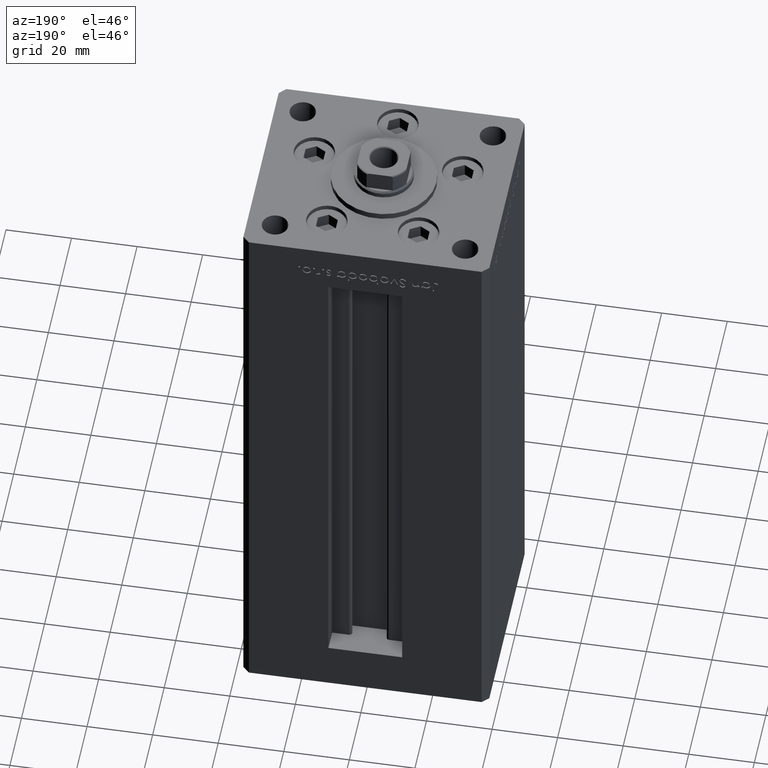
[diagram: clean part render]
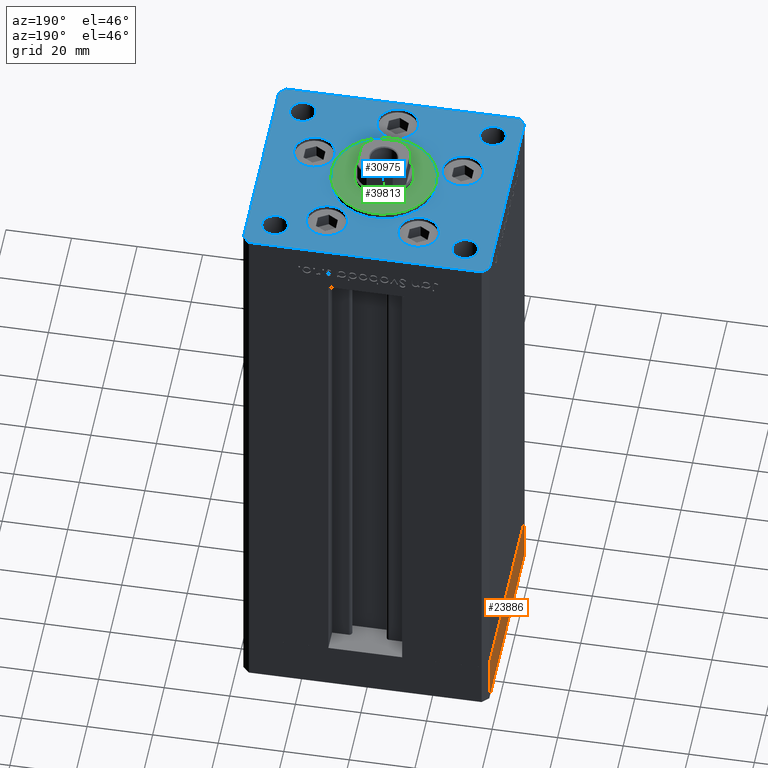
[diagram: same view with three faces highlighted in distinct colors, each labeled with its STEP entity id]
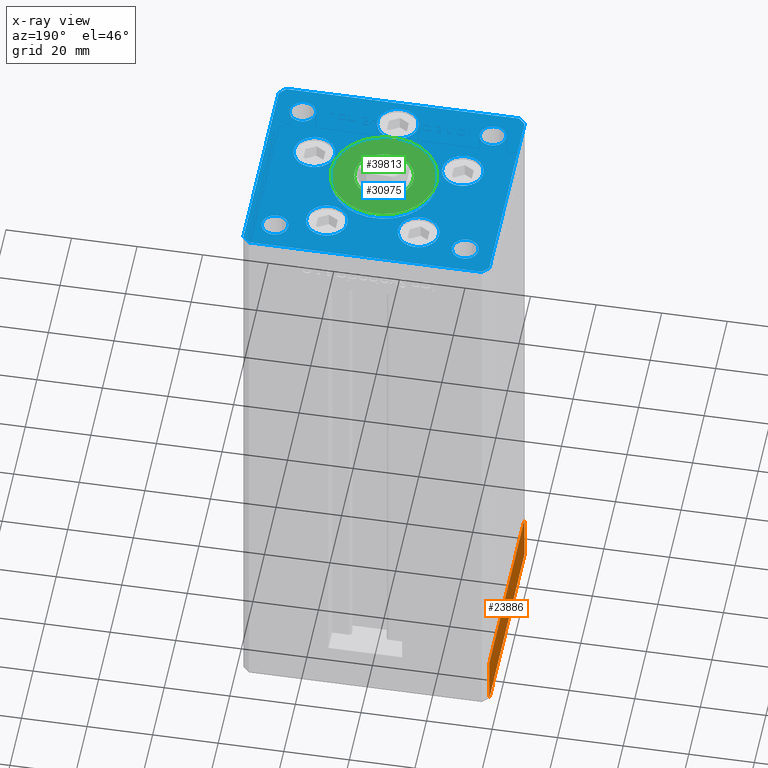
[diagram: x-ray of the same camera — body ghosted, the three highlighted faces saturated]
A machine part, auxiliary view with three faces highlighted in distinct colors.
The next image is the same camera in x-ray (body ghosted, the three faces saturated) — at least one of them is partly hidden behind the body in this view.
Their STEP definitions:

[orange] entity #23886 — the highlighted planar face has unit normal (-1, 0, 0).
#3439 = VECTOR ( 'NONE', #39386, 1000.000000000000000 ) ;
#3461 = CARTESIAN_POINT ( 'NONE',  ( 37.50000000000001421, -30.50000000000000711, 0.000000000000000000 ) ) ;
#4001 = DIRECTION ( 'NONE',  ( -1.478780668045802821E-15, 1.000000000000000000, 0.000000000000000000 ) ) ;
#4687 = ORIENTED_EDGE ( 'NONE', *, *, #30569, .F. ) ;
#6138 = VERTEX_POINT ( 'NONE', #17794 ) ;
#6456 = DIRECTION ( 'NONE',  ( 0.000000000000000000, 0.000000000000000000, 1.000000000000000000 ) ) ;
#11956 = CARTESIAN_POINT ( 'NONE',  ( 37.50000000000001421, -30.50000000000000711, 0.000000000000000000 ) ) ;
#12186 = LINE ( 'NONE', #3461, #48911 ) ;
#12970 = LINE ( 'NONE', #48602, #47824 ) ;
#14666 = PLANE ( 'NONE',  #25972 ) ;
#17088 = EDGE_CURVE ( 'NONE', #6138, #39335, #12970, .T. ) ;
#17794 = CARTESIAN_POINT ( 'NONE',  ( 37.50000000000001421, -30.50000000000000711, -15.00000000000000000 ) ) ;
#17875 = VECTOR ( 'NONE', #6456, 1000.000000000000000 ) ;
#18354 = DIRECTION ( 'NONE',  ( 1.000000000000000000, 1.478780668045803018E-15, -0.000000000000000000 ) ) ;
#20729 = VERTEX_POINT ( 'NONE', #11956 ) ;
#22061 = FACE_OUTER_BOUND ( 'NONE', #42623, .T. ) ;
#22573 = CARTESIAN_POINT ( 'NONE',  ( 37.50000000000001421, -30.50000000000000711, -15.00000000000000000 ) ) ;
#23886 = ADVANCED_FACE ( 'NONE', ( #22061 ), #14666, .T. ) ;
#25209 = ORIENTED_EDGE ( 'NONE', *, *, #17088, .T. ) ;
#25972 = AXIS2_PLACEMENT_3D ( 'NONE', #22573, #18354, #37925 ) ;
#26067 = ORIENTED_EDGE ( 'NONE', *, *, #51692, .T. ) ;
#26792 = LINE ( 'NONE', #34470, #17875 ) ;
#28539 = DIRECTION ( 'NONE',  ( -1.478780668045802821E-15, 1.000000000000000000, 0.000000000000000000 ) ) ;
#30569 = EDGE_CURVE ( 'NONE', #20729, #34625, #12186, .T. ) ;
#31176 = CARTESIAN_POINT ( 'NONE',  ( 37.50000000000001421, -30.50000000000000711, -15.00000000000000000 ) ) ;
#34470 = CARTESIAN_POINT ( 'NONE',  ( 37.49999999999992184, 30.50000000000001066, -15.00000000000000000 ) ) ;
#34625 = VERTEX_POINT ( 'NONE', #40521 ) ;
#35151 = LINE ( 'NONE', #31176, #3439 ) ;
#35480 = ORIENTED_EDGE ( 'NONE', *, *, #43977, .F. ) ;
#37925 = DIRECTION ( 'NONE',  ( -1.478780668045803018E-15, 1.000000000000000000, 0.000000000000000000 ) ) ;
#39335 = VERTEX_POINT ( 'NONE', #42468 ) ;
#39386 = DIRECTION ( 'NONE',  ( 0.000000000000000000, 0.000000000000000000, 1.000000000000000000 ) ) ;
#40521 = CARTESIAN_POINT ( 'NONE',  ( 37.49999999999992184, 30.50000000000001066, 0.000000000000000000 ) ) ;
#42468 = CARTESIAN_POINT ( 'NONE',  ( 37.49999999999992184, 30.50000000000001066, -15.00000000000000000 ) ) ;
#42623 = EDGE_LOOP ( 'NONE', ( #4687, #35480, #25209, #26067 ) ) ;
#43977 = EDGE_CURVE ( 'NONE', #6138, #20729, #35151, .T. ) ;
#47824 = VECTOR ( 'NONE', #4001, 1000.000000000000000 ) ;
#48602 = CARTESIAN_POINT ( 'NONE',  ( 37.50000000000001421, -30.50000000000000711, -15.00000000000000000 ) ) ;
#48911 = VECTOR ( 'NONE', #28539, 1000.000000000000000 ) ;
#51692 = EDGE_CURVE ( 'NONE', #39335, #34625, #26792, .T. ) ;

[blue] entity #30975 — the highlighted planar face has unit normal (0, 0, 1).
#56 = EDGE_CURVE ( 'NONE', #41171, #18325, #45005, .T. ) ;
#202 = VERTEX_POINT ( 'NONE', #8745 ) ;
#344 = EDGE_CURVE ( 'NONE', #26016, #4117, #28511, .T. ) ;
#396 = DIRECTION ( 'NONE',  ( -0.000000000000000000, -0.000000000000000000, -1.000000000000000000 ) ) ;
#462 = EDGE_LOOP ( 'NONE', ( #487, #12378 ) ) ;
#487 = ORIENTED_EDGE ( 'NONE', *, *, #56, .F. ) ;
#791 = CIRCLE ( 'NONE', #20074, 4.000000000000000000 ) ;
#940 = CARTESIAN_POINT ( 'NONE',  ( -35.50000000000000711, 32.49999999999997868, 0.000000000000000000 ) ) ;
#1187 = FACE_BOUND ( 'NONE', #28733, .T. ) ;
#1451 = FACE_BOUND ( 'NONE', #35359, .T. ) ;
#1930 = LINE ( 'NONE', #10891, #17668 ) ;
#2027 = CARTESIAN_POINT ( 'NONE',  ( 0.000000000000000000, -24.00000000000001066, 0.000000000000000000 ) ) ;
#2121 = VERTEX_POINT ( 'NONE', #22216 ) ;
#2246 = ORIENTED_EDGE ( 'NONE', *, *, #344, .T. ) ;
#2268 = DIRECTION ( 'NONE',  ( -1.000000000000000000, 0.000000000000000000, 0.000000000000000000 ) ) ;
#2336 = LINE ( 'NONE', #11031, #29667 ) ;
#2898 = DIRECTION ( 'NONE',  ( -0.000000000000000000, -0.000000000000000000, -1.000000000000000000 ) ) ;
#2958 = EDGE_LOOP ( 'NONE', ( #28787, #42600 ) ) ;
#3064 = DIRECTION ( 'NONE',  ( 1.000000000000000000, 0.000000000000000000, 0.000000000000000000 ) ) ;
#3811 = DIRECTION ( 'NONE',  ( 0.000000000000000000, 0.000000000000000000, 1.000000000000000000 ) ) ;
#3820 = CARTESIAN_POINT ( 'NONE',  ( -22.62741699796953299, -8.000000000000000000, 0.000000000000000000 ) ) ;
#3961 = VERTEX_POINT ( 'NONE', #50387 ) ;
#4087 = CIRCLE ( 'NONE', #35309, 16.00000000000000355 ) ;
#4117 = VERTEX_POINT ( 'NONE', #20763 ) ;
#4161 = AXIS2_PLACEMENT_3D ( 'NONE', #29740, #9666, #18614 ) ;
#4208 = EDGE_CURVE ( 'NONE', #47137, #51368, #27383, .T. ) ;
#4487 = DIRECTION ( 'NONE',  ( 1.000000000000000000, 0.000000000000000000, 0.000000000000000000 ) ) ;
#4611 = CARTESIAN_POINT ( 'NONE',  ( -29.00000000000000000, 24.00000000000000711, 0.000000000000000000 ) ) ;
#4664 = EDGE_CURVE ( 'NONE', #4117, #22891, #28851, .T. ) ;
#4948 = VERTEX_POINT ( 'NONE', #28019 ) ;
#5171 = EDGE_CURVE ( 'NONE', #49449, #42671, #27416, .T. ) ;
#5760 = EDGE_CURVE ( 'NONE', #22980, #25162, #26313, .T. ) ;
#5770 = DIRECTION ( 'NONE',  ( -0.000000000000000000, -0.000000000000000000, -1.000000000000000000 ) ) ;
#5864 = EDGE_CURVE ( 'NONE', #20955, #31782, #38409, .T. ) ;
#5936 = FACE_BOUND ( 'NONE', #7629, .T. ) ;
#6619 = DIRECTION ( 'NONE',  ( 0.000000000000000000, 1.000000000000000000, 0.000000000000000000 ) ) ;
#6738 = CARTESIAN_POINT ( 'NONE',  ( 22.62741699796953299, -8.000000000000000000, 0.000000000000000000 ) ) ;
#6980 = DIRECTION ( 'NONE',  ( 0.000000000000000000, 0.000000000000000000, 1.000000000000000000 ) ) ;
#7002 = DIRECTION ( 'NONE',  ( 0.000000000000000000, 0.000000000000000000, 1.000000000000000000 ) ) ;
#7082 = CIRCLE ( 'NONE', #13866, 6.250000000000001776 ) ;
#7161 = AXIS2_PLACEMENT_3D ( 'NONE', #2027, #7002, #26824 ) ;
#7190 = EDGE_CURVE ( 'NONE', #2121, #27115, #7082, .T. ) ;
#7629 = EDGE_LOOP ( 'NONE', ( #31191, #36967 ) ) ;
#7642 = VERTEX_POINT ( 'NONE', #35423 ) ;
#8575 = DIRECTION ( 'NONE',  ( 0.000000000000000000, 0.000000000000000000, 1.000000000000000000 ) ) ;
#8745 = CARTESIAN_POINT ( 'NONE',  ( 35.50000000000001421, -32.49999999999992184, 0.000000000000000000 ) ) ;
#8833 = CARTESIAN_POINT ( 'NONE',  ( 0.000000000000000000, -6.938893903907228378E-15, 0.000000000000000000 ) ) ;
#9666 = DIRECTION ( 'NONE',  ( 0.000000000000000000, 0.000000000000000000, 1.000000000000000000 ) ) ;
#9730 = ORIENTED_EDGE ( 'NONE', *, *, #49860, .T. ) ;
#9744 = CARTESIAN_POINT ( 'NONE',  ( -29.00000000000000000, 24.00000000000000711, 0.000000000000000000 ) ) ;
#9778 = CARTESIAN_POINT ( 'NONE',  ( 20.24106857963324302, 19.50000000000000000, 0.000000000000000000 ) ) ;
#10100 = CARTESIAN_POINT ( 'NONE',  ( -35.50000000000000711, 32.49999999999997868, 0.000000000000000000 ) ) ;
#10449 = DIRECTION ( 'NONE',  ( 1.000000000000000000, 0.000000000000000000, 0.000000000000000000 ) ) ;
#10461 = VECTOR ( 'NONE', #38473, 1000.000000000000000 ) ;
#10467 = ORIENTED_EDGE ( 'NONE', *, *, #34285, .T. ) ;
#10891 = CARTESIAN_POINT ( 'NONE',  ( -35.50000000000001421, -32.50000000000000711, 0.000000000000000000 ) ) ;
#11031 = CARTESIAN_POINT ( 'NONE',  ( 35.50000000000001421, -32.49999999999992184, 0.000000000000000000 ) ) ;
#11293 = DIRECTION ( 'NONE',  ( 0.7071067811865463515, 0.7071067811865487940, 0.000000000000000000 ) ) ;
#11776 = EDGE_LOOP ( 'NONE', ( #22180, #25093 ) ) ;
#11779 = CARTESIAN_POINT ( 'NONE',  ( 16.00000000000000355, -4.979459025271462852E-15, 0.000000000000000000 ) ) ;
#11854 = CIRCLE ( 'NONE', #42226, 4.000000000000000000 ) ;
#11941 = VECTOR ( 'NONE', #6619, 1000.000000000000000 ) ;
#12211 = DIRECTION ( 'NONE',  ( 1.000000000000000000, 0.000000000000000000, 0.000000000000000000 ) ) ;
#12378 = ORIENTED_EDGE ( 'NONE', *, *, #14288, .F. ) ;
#12507 = DIRECTION ( 'NONE',  ( 1.000000000000000000, 0.000000000000000000, 0.000000000000000000 ) ) ;
#12888 = ORIENTED_EDGE ( 'NONE', *, *, #4664, .T. ) ;
#13149 = CARTESIAN_POINT ( 'NONE',  ( -22.62741699796953299, -8.000000000000000000, 0.000000000000000000 ) ) ;
#13310 = DIRECTION ( 'NONE',  ( 1.000000000000000000, 0.000000000000000000, 0.000000000000000000 ) ) ;
#13667 = CIRCLE ( 'NONE', #43145, 4.000000000000000000 ) ;
#13866 = AXIS2_PLACEMENT_3D ( 'NONE', #34190, #15673, #16452 ) ;
#13967 = CARTESIAN_POINT ( 'NONE',  ( -32.99999999999999289, -23.99999999999999645, 0.000000000000000000 ) ) ;
#14125 = ORIENTED_EDGE ( 'NONE', *, *, #5760, .T. ) ;
#14139 = DIRECTION ( 'NONE',  ( -0.000000000000000000, 0.000000000000000000, 1.000000000000000000 ) ) ;
#14184 = ORIENTED_EDGE ( 'NONE', *, *, #28426, .T. ) ;
#14288 = EDGE_CURVE ( 'NONE', #18325, #41171, #16557, .T. ) ;
#14301 = CIRCLE ( 'NONE', #21011, 6.250000000000000000 ) ;
#14530 = EDGE_CURVE ( 'NONE', #51368, #47137, #29219, .T. ) ;
#14806 = CARTESIAN_POINT ( 'NONE',  ( -35.50000000000001421, -32.50000000000000711, 0.000000000000000000 ) ) ;
#14915 = CARTESIAN_POINT ( 'NONE',  ( -29.00000000000000000, -23.99999999999999645, 0.000000000000000000 ) ) ;
#15201 = CIRCLE ( 'NONE', #22813, 6.250000000000001776 ) ;
#15379 = CARTESIAN_POINT ( 'NONE',  ( -29.00000000000000000, -23.99999999999999645, 0.000000000000000000 ) ) ;
#15427 = EDGE_CURVE ( 'NONE', #42671, #49449, #31784, .T. ) ;
#15500 = DIRECTION ( 'NONE',  ( 0.000000000000000000, 0.000000000000000000, 1.000000000000000000 ) ) ;
#15673 = DIRECTION ( 'NONE',  ( 0.000000000000000000, 0.000000000000000000, 1.000000000000000000 ) ) ;
#15713 = DIRECTION ( 'NONE',  ( 0.000000000000000000, 0.000000000000000000, 1.000000000000000000 ) ) ;
#15917 = CARTESIAN_POINT ( 'NONE',  ( 7.741068579633241242, 19.50000000000000000, 0.000000000000000000 ) ) ;
#15990 = DIRECTION ( 'NONE',  ( -1.000000000000000000, 0.000000000000000000, 0.000000000000000000 ) ) ;
#16124 = DIRECTION ( 'NONE',  ( 0.000000000000000000, 0.000000000000000000, 1.000000000000000000 ) ) ;
#16146 = CARTESIAN_POINT ( 'NONE',  ( 33.00000000000000000, 24.00000000000000355, 0.000000000000000000 ) ) ;
#16207 = DIRECTION ( 'NONE',  ( 0.000000000000000000, 0.000000000000000000, 1.000000000000000000 ) ) ;
#16452 = DIRECTION ( 'NONE',  ( 1.000000000000000000, 0.000000000000000000, 0.000000000000000000 ) ) ;
#16454 = AXIS2_PLACEMENT_3D ( 'NONE', #19418, #27360, #3064 ) ;
#16505 = DIRECTION ( 'NONE',  ( 1.000000000000000000, 0.000000000000000000, 0.000000000000000000 ) ) ;
#16530 = CARTESIAN_POINT ( 'NONE',  ( -20.24106857963324302, 19.50000000000000000, 0.000000000000000000 ) ) ;
#16557 = CIRCLE ( 'NONE', #41854, 3.999999999999996447 ) ;
#16900 = VERTEX_POINT ( 'NONE', #46257 ) ;
#17168 = VECTOR ( 'NONE', #20554, 1000.000000000000000 ) ;
#17277 = AXIS2_PLACEMENT_3D ( 'NONE', #36650, #41375, #25009 ) ;
#17668 = VECTOR ( 'NONE', #26999, 1000.000000000000000 ) ;
#18016 = LINE ( 'NONE', #10100, #39790 ) ;
#18325 = VERTEX_POINT ( 'NONE', #13967 ) ;
#18336 = FACE_BOUND ( 'NONE', #2958, .T. ) ;
#18614 = DIRECTION ( 'NONE',  ( 1.000000000000000000, 0.000000000000000000, 0.000000000000000000 ) ) ;
#18795 = CARTESIAN_POINT ( 'NONE',  ( 25.00000000000000355, -23.99999999999999645, 0.000000000000000000 ) ) ;
#18915 = ORIENTED_EDGE ( 'NONE', *, *, #42140, .F. ) ;
#19300 = ORIENTED_EDGE ( 'NONE', *, *, #24195, .T. ) ;
#19418 = CARTESIAN_POINT ( 'NONE',  ( -13.99106857963324124, 19.50000000000000000, 0.000000000000000000 ) ) ;
#19441 = CIRCLE ( 'NONE', #49784, 16.00000000000000355 ) ;
#19731 = CARTESIAN_POINT ( 'NONE',  ( -25.00000000000000355, -23.99999999999999645, 0.000000000000000000 ) ) ;
#20074 = AXIS2_PLACEMENT_3D ( 'NONE', #9744, #5770, #38007 ) ;
#20270 = VECTOR ( 'NONE', #38355, 1000.000000000000000 ) ;
#20554 = DIRECTION ( 'NONE',  ( -0.7071067811865524577, 0.7071067811865426878, 0.000000000000000000 ) ) ;
#20763 = CARTESIAN_POINT ( 'NONE',  ( 35.50000000000000000, 32.49999999999999289, 0.000000000000000000 ) ) ;
#20955 = VERTEX_POINT ( 'NONE', #30889 ) ;
#21011 = AXIS2_PLACEMENT_3D ( 'NONE', #31687, #15500, #44338 ) ;
#21192 = CARTESIAN_POINT ( 'NONE',  ( -13.99106857963324124, 19.50000000000000000, 0.000000000000000000 ) ) ;
#22180 = ORIENTED_EDGE ( 'NONE', *, *, #50990, .T. ) ;
#22216 = CARTESIAN_POINT ( 'NONE',  ( 28.87741699796953654, -8.000000000000000000, 0.000000000000000000 ) ) ;
#22220 = CARTESIAN_POINT ( 'NONE',  ( -37.50000000000001421, 30.50000000000000000, 0.000000000000000000 ) ) ;
#22629 = ORIENTED_EDGE ( 'NONE', *, *, #7190, .F. ) ;
#22813 = AXIS2_PLACEMENT_3D ( 'NONE', #13149, #28465, #44296 ) ;
#22891 = VERTEX_POINT ( 'NONE', #940 ) ;
#22980 = VERTEX_POINT ( 'NONE', #29983 ) ;
#23767 = EDGE_LOOP ( 'NONE', ( #22629, #27204 ) ) ;
#24195 = EDGE_CURVE ( 'NONE', #7642, #47341, #791, .T. ) ;
#24688 = CARTESIAN_POINT ( 'NONE',  ( -25.00000000000000000, 24.00000000000000711, 0.000000000000000000 ) ) ;
#24844 = EDGE_LOOP ( 'NONE', ( #32497, #19300 ) ) ;
#25009 = DIRECTION ( 'NONE',  ( 1.000000000000000000, 0.000000000000000000, 0.000000000000000000 ) ) ;
#25093 = ORIENTED_EDGE ( 'NONE', *, *, #33611, .T. ) ;
#25098 = CARTESIAN_POINT ( 'NONE',  ( 6.250000000000000000, -24.00000000000001066, 0.000000000000000000 ) ) ;
#25158 = VERTEX_POINT ( 'NONE', #43299 ) ;
#25162 = VERTEX_POINT ( 'NONE', #14806 ) ;
#25720 = VECTOR ( 'NONE', #33074, 1000.000000000000000 ) ;
#25962 = DIRECTION ( 'NONE',  ( 0.000000000000000000, 0.000000000000000000, 1.000000000000000000 ) ) ;
#26016 = VERTEX_POINT ( 'NONE', #36530 ) ;
#26193 = AXIS2_PLACEMENT_3D ( 'NONE', #45796, #14139, #46588 ) ;
#26313 = LINE ( 'NONE', #34762, #10461 ) ;
#26810 = CARTESIAN_POINT ( 'NONE',  ( 29.00000000000000355, -23.99999999999999645, 0.000000000000000000 ) ) ;
#26824 = DIRECTION ( 'NONE',  ( 1.000000000000000000, 0.000000000000000000, 0.000000000000000000 ) ) ;
#26999 = DIRECTION ( 'NONE',  ( 1.000000000000000000, 1.172770800660376149E-15, 0.000000000000000000 ) ) ;
#27115 = VERTEX_POINT ( 'NONE', #45082 ) ;
#27204 = ORIENTED_EDGE ( 'NONE', *, *, #40460, .F. ) ;
#27338 = DIRECTION ( 'NONE',  ( 1.000000000000000000, 0.000000000000000000, 0.000000000000000000 ) ) ;
#27360 = DIRECTION ( 'NONE',  ( 0.000000000000000000, 0.000000000000000000, 1.000000000000000000 ) ) ;
#27383 = CIRCLE ( 'NONE', #17277, 4.000000000000000000 ) ;
#27416 = CIRCLE ( 'NONE', #16454, 6.250000000000000000 ) ;
#28019 = CARTESIAN_POINT ( 'NONE',  ( 33.00000000000000000, -23.99999999999999645, 0.000000000000000000 ) ) ;
#28110 = CARTESIAN_POINT ( 'NONE',  ( 29.00000000000000000, 24.00000000000000355, 0.000000000000000000 ) ) ;
#28211 = ORIENTED_EDGE ( 'NONE', *, *, #5171, .F. ) ;
#28426 = EDGE_CURVE ( 'NONE', #25162, #202, #1930, .T. ) ;
#28465 = DIRECTION ( 'NONE',  ( 0.000000000000000000, 0.000000000000000000, 1.000000000000000000 ) ) ;
#28511 = LINE ( 'NONE', #40143, #17168 ) ;
#28733 = EDGE_LOOP ( 'NONE', ( #30977, #28211 ) ) ;
#28787 = ORIENTED_EDGE ( 'NONE', *, *, #14530, .F. ) ;
#28851 = LINE ( 'NONE', #32300, #25720 ) ;
#28980 = EDGE_LOOP ( 'NONE', ( #30299, #33477 ) ) ;
#29219 = CIRCLE ( 'NONE', #46924, 4.000000000000000000 ) ;
#29570 = CARTESIAN_POINT ( 'NONE',  ( -7.741068579633241242, 19.50000000000000000, 0.000000000000000000 ) ) ;
#29667 = VECTOR ( 'NONE', #11293, 1000.000000000000000 ) ;
#29717 = FACE_BOUND ( 'NONE', #24844, .T. ) ;
#29740 = CARTESIAN_POINT ( 'NONE',  ( 0.000000000000000000, -24.00000000000001066, 0.000000000000000000 ) ) ;
#29983 = CARTESIAN_POINT ( 'NONE',  ( -37.50000000000000000, -30.50000000000004263, 0.000000000000000000 ) ) ;
#30299 = ORIENTED_EDGE ( 'NONE', *, *, #38586, .F. ) ;
#30889 = CARTESIAN_POINT ( 'NONE',  ( -6.250000000000000000, -24.00000000000001066, 0.000000000000000000 ) ) ;
#30975 = ADVANCED_FACE ( 'NONE', ( #5936, #1187, #1451, #38180, #37906, #46061, #29717, #18336, #50282, #46323, #41329 ), #34460, .T. ) ;
#30977 = ORIENTED_EDGE ( 'NONE', *, *, #15427, .F. ) ;
#31191 = ORIENTED_EDGE ( 'NONE', *, *, #47426, .F. ) ;
#31687 = CARTESIAN_POINT ( 'NONE',  ( 13.99106857963324124, 19.50000000000000000, 0.000000000000000000 ) ) ;
#31782 = VERTEX_POINT ( 'NONE', #25098 ) ;
#31784 = CIRCLE ( 'NONE', #36853, 6.250000000000000000 ) ;
#31859 = VERTEX_POINT ( 'NONE', #9778 ) ;
#31946 = CIRCLE ( 'NONE', #4161, 6.250000000000000000 ) ;
#32211 = CIRCLE ( 'NONE', #41505, 4.000000000000000000 ) ;
#32300 = CARTESIAN_POINT ( 'NONE',  ( 35.50000000000000000, 32.49999999999999289, 0.000000000000000000 ) ) ;
#32343 = DIRECTION ( 'NONE',  ( 1.000000000000000000, 0.000000000000000000, 0.000000000000000000 ) ) ;
#32497 = ORIENTED_EDGE ( 'NONE', *, *, #47288, .T. ) ;
#32693 = VERTEX_POINT ( 'NONE', #47038 ) ;
#32740 = ORIENTED_EDGE ( 'NONE', *, *, #44607, .F. ) ;
#33074 = DIRECTION ( 'NONE',  ( -1.000000000000000000, -1.954618001100627573E-16, 0.000000000000000000 ) ) ;
#33477 = ORIENTED_EDGE ( 'NONE', *, *, #5864, .F. ) ;
#33611 = EDGE_CURVE ( 'NONE', #50735, #4948, #13667, .T. ) ;
#33640 = VERTEX_POINT ( 'NONE', #40262 ) ;
#33689 = EDGE_CURVE ( 'NONE', #16900, #25158, #46497, .T. ) ;
#33895 = DIRECTION ( 'NONE',  ( 1.000000000000000000, 0.000000000000000000, 0.000000000000000000 ) ) ;
#34058 = EDGE_LOOP ( 'NONE', ( #14125, #14184, #10467, #41070, #2246, #12888, #9730, #38567 ) ) ;
#34190 = CARTESIAN_POINT ( 'NONE',  ( 22.62741699796953299, -8.000000000000000000, 0.000000000000000000 ) ) ;
#34285 = EDGE_CURVE ( 'NONE', #202, #33640, #2336, .T. ) ;
#34460 = PLANE ( 'NONE',  #26193 ) ;
#34762 = CARTESIAN_POINT ( 'NONE',  ( -37.50000000000000000, -30.50000000000004263, 0.000000000000000000 ) ) ;
#35309 = AXIS2_PLACEMENT_3D ( 'NONE', #39641, #16124, #4487 ) ;
#35359 = EDGE_LOOP ( 'NONE', ( #32740, #44535 ) ) ;
#35423 = CARTESIAN_POINT ( 'NONE',  ( -33.00000000000000000, 24.00000000000000711, 0.000000000000000000 ) ) ;
#35526 = CIRCLE ( 'NONE', #43078, 6.250000000000000000 ) ;
#35703 = VERTEX_POINT ( 'NONE', #15917 ) ;
#36248 = DIRECTION ( 'NONE',  ( 0.000000000000000000, 0.000000000000000000, 1.000000000000000000 ) ) ;
#36289 = CARTESIAN_POINT ( 'NONE',  ( 13.99106857963324124, 19.50000000000000000, 0.000000000000000000 ) ) ;
#36530 = CARTESIAN_POINT ( 'NONE',  ( 37.50000000000000711, 30.50000000000001421, 0.000000000000000000 ) ) ;
#36556 = EDGE_CURVE ( 'NONE', #37324, #3961, #4087, .T. ) ;
#36650 = CARTESIAN_POINT ( 'NONE',  ( 29.00000000000000000, 24.00000000000000355, 0.000000000000000000 ) ) ;
#36853 = AXIS2_PLACEMENT_3D ( 'NONE', #21192, #25962, #33895 ) ;
#36967 = ORIENTED_EDGE ( 'NONE', *, *, #36556, .F. ) ;
#37079 = EDGE_LOOP ( 'NONE', ( #18915, #51803 ) ) ;
#37324 = VERTEX_POINT ( 'NONE', #11779 ) ;
#37570 = LINE ( 'NONE', #22220, #20270 ) ;
#37906 = FACE_BOUND ( 'NONE', #28980, .T. ) ;
#38007 = DIRECTION ( 'NONE',  ( -1.000000000000000000, 0.000000000000000000, 0.000000000000000000 ) ) ;
#38058 = DIRECTION ( 'NONE',  ( -1.000000000000000000, 0.000000000000000000, 0.000000000000000000 ) ) ;
#38180 = FACE_BOUND ( 'NONE', #23767, .T. ) ;
#38355 = DIRECTION ( 'NONE',  ( 2.275047181608926165E-16, -1.000000000000000000, 0.000000000000000000 ) ) ;
#38409 = CIRCLE ( 'NONE', #7161, 6.250000000000000000 ) ;
#38458 = DIRECTION ( 'NONE',  ( -0.000000000000000000, -0.000000000000000000, -1.000000000000000000 ) ) ;
#38473 = DIRECTION ( 'NONE',  ( 0.7071067811865512365, -0.7071067811865439090, 0.000000000000000000 ) ) ;
#38567 = ORIENTED_EDGE ( 'NONE', *, *, #43837, .T. ) ;
#38577 = CARTESIAN_POINT ( 'NONE',  ( 29.00000000000000355, -23.99999999999999645, 0.000000000000000000 ) ) ;
#38586 = EDGE_CURVE ( 'NONE', #31782, #20955, #31946, .T. ) ;
#39641 = CARTESIAN_POINT ( 'NONE',  ( 0.000000000000000000, -6.938893903907228378E-15, 0.000000000000000000 ) ) ;
#39790 = VECTOR ( 'NONE', #50479, 1000.000000000000000 ) ;
#39920 = EDGE_CURVE ( 'NONE', #35703, #31859, #14301, .T. ) ;
#40143 = CARTESIAN_POINT ( 'NONE',  ( 37.50000000000000711, 30.50000000000001421, 0.000000000000000000 ) ) ;
#40262 = CARTESIAN_POINT ( 'NONE',  ( 37.50000000000000711, -30.49999999999992895, 0.000000000000000000 ) ) ;
#40460 = EDGE_CURVE ( 'NONE', #27115, #2121, #42160, .T. ) ;
#41070 = ORIENTED_EDGE ( 'NONE', *, *, #47842, .T. ) ;
#41171 = VERTEX_POINT ( 'NONE', #19731 ) ;
#41329 = FACE_BOUND ( 'NONE', #11776, .T. ) ;
#41375 = DIRECTION ( 'NONE',  ( 0.000000000000000000, 0.000000000000000000, 1.000000000000000000 ) ) ;
#41505 = AXIS2_PLACEMENT_3D ( 'NONE', #38577, #2898, #38058 ) ;
#41854 = AXIS2_PLACEMENT_3D ( 'NONE', #14915, #6980, #10449 ) ;
#42140 = EDGE_CURVE ( 'NONE', #25158, #16900, #15201, .T. ) ;
#42160 = CIRCLE ( 'NONE', #42970, 6.250000000000001776 ) ;
#42226 = AXIS2_PLACEMENT_3D ( 'NONE', #4611, #396, #15990 ) ;
#42283 = CARTESIAN_POINT ( 'NONE',  ( 37.50000000000000711, -30.49999999999992895, 0.000000000000000000 ) ) ;
#42600 = ORIENTED_EDGE ( 'NONE', *, *, #4208, .F. ) ;
#42671 = VERTEX_POINT ( 'NONE', #29570 ) ;
#42788 = LINE ( 'NONE', #42283, #11941 ) ;
#42970 = AXIS2_PLACEMENT_3D ( 'NONE', #6738, #46871, #27338 ) ;
#43078 = AXIS2_PLACEMENT_3D ( 'NONE', #36289, #16207, #12507 ) ;
#43145 = AXIS2_PLACEMENT_3D ( 'NONE', #26810, #38458, #2268 ) ;
#43299 = CARTESIAN_POINT ( 'NONE',  ( -16.37741699796953299, -8.000000000000000000, 0.000000000000000000 ) ) ;
#43837 = EDGE_CURVE ( 'NONE', #32693, #22980, #37570, .T. ) ;
#43972 = AXIS2_PLACEMENT_3D ( 'NONE', #3820, #15713, #32343 ) ;
#44296 = DIRECTION ( 'NONE',  ( 1.000000000000000000, 0.000000000000000000, 0.000000000000000000 ) ) ;
#44338 = DIRECTION ( 'NONE',  ( 1.000000000000000000, 0.000000000000000000, 0.000000000000000000 ) ) ;
#44535 = ORIENTED_EDGE ( 'NONE', *, *, #39920, .F. ) ;
#44607 = EDGE_CURVE ( 'NONE', #31859, #35703, #35526, .T. ) ;
#45005 = CIRCLE ( 'NONE', #50891, 3.999999999999996447 ) ;
#45082 = CARTESIAN_POINT ( 'NONE',  ( 16.37741699796953299, -8.000000000000000000, 0.000000000000000000 ) ) ;
#45796 = CARTESIAN_POINT ( 'NONE',  ( 0.000000000000000000, 0.000000000000000000, 0.000000000000000000 ) ) ;
#46061 = FACE_BOUND ( 'NONE', #37079, .T. ) ;
#46257 = CARTESIAN_POINT ( 'NONE',  ( -28.87741699796953654, -8.000000000000000000, 0.000000000000000000 ) ) ;
#46323 = FACE_OUTER_BOUND ( 'NONE', #34058, .T. ) ;
#46497 = CIRCLE ( 'NONE', #43972, 6.250000000000001776 ) ;
#46588 = DIRECTION ( 'NONE',  ( 1.000000000000000000, 0.000000000000000000, 0.000000000000000000 ) ) ;
#46871 = DIRECTION ( 'NONE',  ( 0.000000000000000000, 0.000000000000000000, 1.000000000000000000 ) ) ;
#46924 = AXIS2_PLACEMENT_3D ( 'NONE', #28110, #3811, #13310 ) ;
#47038 = CARTESIAN_POINT ( 'NONE',  ( -37.50000000000001421, 30.50000000000000000, 0.000000000000000000 ) ) ;
#47137 = VERTEX_POINT ( 'NONE', #49534 ) ;
#47288 = EDGE_CURVE ( 'NONE', #47341, #7642, #11854, .T. ) ;
#47341 = VERTEX_POINT ( 'NONE', #24688 ) ;
#47426 = EDGE_CURVE ( 'NONE', #3961, #37324, #19441, .T. ) ;
#47842 = EDGE_CURVE ( 'NONE', #33640, #26016, #42788, .T. ) ;
#49449 = VERTEX_POINT ( 'NONE', #16530 ) ;
#49534 = CARTESIAN_POINT ( 'NONE',  ( 24.99999999999999645, 24.00000000000000355, 0.000000000000000000 ) ) ;
#49784 = AXIS2_PLACEMENT_3D ( 'NONE', #8833, #8575, #16505 ) ;
#49860 = EDGE_CURVE ( 'NONE', #22891, #32693, #18016, .T. ) ;
#50282 = FACE_BOUND ( 'NONE', #462, .T. ) ;
#50387 = CARTESIAN_POINT ( 'NONE',  ( -16.00000000000000355, -6.938893903907228378E-15, 0.000000000000000000 ) ) ;
#50479 = DIRECTION ( 'NONE',  ( -0.7071067811865524577, -0.7071067811865426878, 0.000000000000000000 ) ) ;
#50735 = VERTEX_POINT ( 'NONE', #18795 ) ;
#50891 = AXIS2_PLACEMENT_3D ( 'NONE', #15379, #36248, #12211 ) ;
#50990 = EDGE_CURVE ( 'NONE', #4948, #50735, #32211, .T. ) ;
#51368 = VERTEX_POINT ( 'NONE', #16146 ) ;
#51803 = ORIENTED_EDGE ( 'NONE', *, *, #33689, .F. ) ;

[green] entity #39813 — the highlighted planar face has unit normal (0, 0, 1).
#196 = CARTESIAN_POINT ( 'NONE',  ( 0.000000000000000000, -6.938893903907228378E-15, 2.000000000000000000 ) ) ;
#716 = AXIS2_PLACEMENT_3D ( 'NONE', #8746, #16678, #24862 ) ;
#892 = DIRECTION ( 'NONE',  ( 1.000000000000000000, 0.000000000000000000, 0.000000000000000000 ) ) ;
#2141 = CARTESIAN_POINT ( 'NONE',  ( 0.000000000000000000, -6.938893903907228378E-15, 2.000000000000000000 ) ) ;
#2911 = FACE_BOUND ( 'NONE', #25138, .T. ) ;
#3501 = AXIS2_PLACEMENT_3D ( 'NONE', #40516, #20680, #892 ) ;
#5200 = VERTEX_POINT ( 'NONE', #43702 ) ;
#6608 = PLANE ( 'NONE',  #10075 ) ;
#8590 = CIRCLE ( 'NONE', #3501, 16.00000000000000355 ) ;
#8746 = CARTESIAN_POINT ( 'NONE',  ( 0.000000000000000000, -6.938893903907228378E-15, 2.000000000000000000 ) ) ;
#9310 = AXIS2_PLACEMENT_3D ( 'NONE', #196, #28452, #36395 ) ;
#10075 = AXIS2_PLACEMENT_3D ( 'NONE', #2141, #22719, #14290 ) ;
#11310 = EDGE_CURVE ( 'NONE', #19760, #42120, #48510, .T. ) ;
#14290 = DIRECTION ( 'NONE',  ( 1.000000000000000000, 0.000000000000000000, -0.000000000000000000 ) ) ;
#14990 = EDGE_LOOP ( 'NONE', ( #42495, #34129 ) ) ;
#15025 = DIRECTION ( 'NONE',  ( 0.000000000000000000, 0.000000000000000000, 1.000000000000000000 ) ) ;
#16678 = DIRECTION ( 'NONE',  ( 0.000000000000000000, 0.000000000000000000, 1.000000000000000000 ) ) ;
#18125 = VERTEX_POINT ( 'NONE', #39877 ) ;
#19749 = CARTESIAN_POINT ( 'NONE',  ( 0.000000000000000000, -6.938893903907228378E-15, 2.000000000000000000 ) ) ;
#19760 = VERTEX_POINT ( 'NONE', #42761 ) ;
#20680 = DIRECTION ( 'NONE',  ( 0.000000000000000000, 0.000000000000000000, 1.000000000000000000 ) ) ;
#20815 = EDGE_CURVE ( 'NONE', #18125, #5200, #29400, .T. ) ;
#22199 = FACE_OUTER_BOUND ( 'NONE', #14990, .T. ) ;
#22719 = DIRECTION ( 'NONE',  ( 0.000000000000000000, 0.000000000000000000, 1.000000000000000000 ) ) ;
#23236 = ORIENTED_EDGE ( 'NONE', *, *, #11310, .F. ) ;
#24862 = DIRECTION ( 'NONE',  ( 1.000000000000000000, 0.000000000000000000, 0.000000000000000000 ) ) ;
#25138 = EDGE_LOOP ( 'NONE', ( #37728, #23236 ) ) ;
#28452 = DIRECTION ( 'NONE',  ( 0.000000000000000000, 0.000000000000000000, 1.000000000000000000 ) ) ;
#29400 = CIRCLE ( 'NONE', #716, 16.00000000000000355 ) ;
#32178 = CARTESIAN_POINT ( 'NONE',  ( 9.000000000000000000, -6.938893903907228378E-15, 2.000000000000000000 ) ) ;
#33897 = EDGE_CURVE ( 'NONE', #5200, #18125, #8590, .T. ) ;
#34129 = ORIENTED_EDGE ( 'NONE', *, *, #33897, .T. ) ;
#36395 = DIRECTION ( 'NONE',  ( 1.000000000000000000, 0.000000000000000000, 0.000000000000000000 ) ) ;
#37728 = ORIENTED_EDGE ( 'NONE', *, *, #46981, .F. ) ;
#39813 = ADVANCED_FACE ( 'NONE', ( #2911, #22199 ), #6608, .T. ) ;
#39877 = CARTESIAN_POINT ( 'NONE',  ( -16.00000000000000355, -6.938893903907228378E-15, 2.000000000000000000 ) ) ;
#40516 = CARTESIAN_POINT ( 'NONE',  ( 0.000000000000000000, -6.938893903907228378E-15, 2.000000000000000000 ) ) ;
#42120 = VERTEX_POINT ( 'NONE', #32178 ) ;
#42495 = ORIENTED_EDGE ( 'NONE', *, *, #20815, .T. ) ;
#42761 = CARTESIAN_POINT ( 'NONE',  ( -9.000000000000000000, -5.836711784674610467E-15, 2.000000000000000000 ) ) ;
#43702 = CARTESIAN_POINT ( 'NONE',  ( 16.00000000000000355, -4.979459025271462852E-15, 2.000000000000000000 ) ) ;
#45979 = AXIS2_PLACEMENT_3D ( 'NONE', #19749, #15025, #47735 ) ;
#46981 = EDGE_CURVE ( 'NONE', #42120, #19760, #48089, .T. ) ;
#47735 = DIRECTION ( 'NONE',  ( 1.000000000000000000, 0.000000000000000000, 0.000000000000000000 ) ) ;
#48089 = CIRCLE ( 'NONE', #9310, 9.000000000000000000 ) ;
#48510 = CIRCLE ( 'NONE', #45979, 9.000000000000000000 ) ;